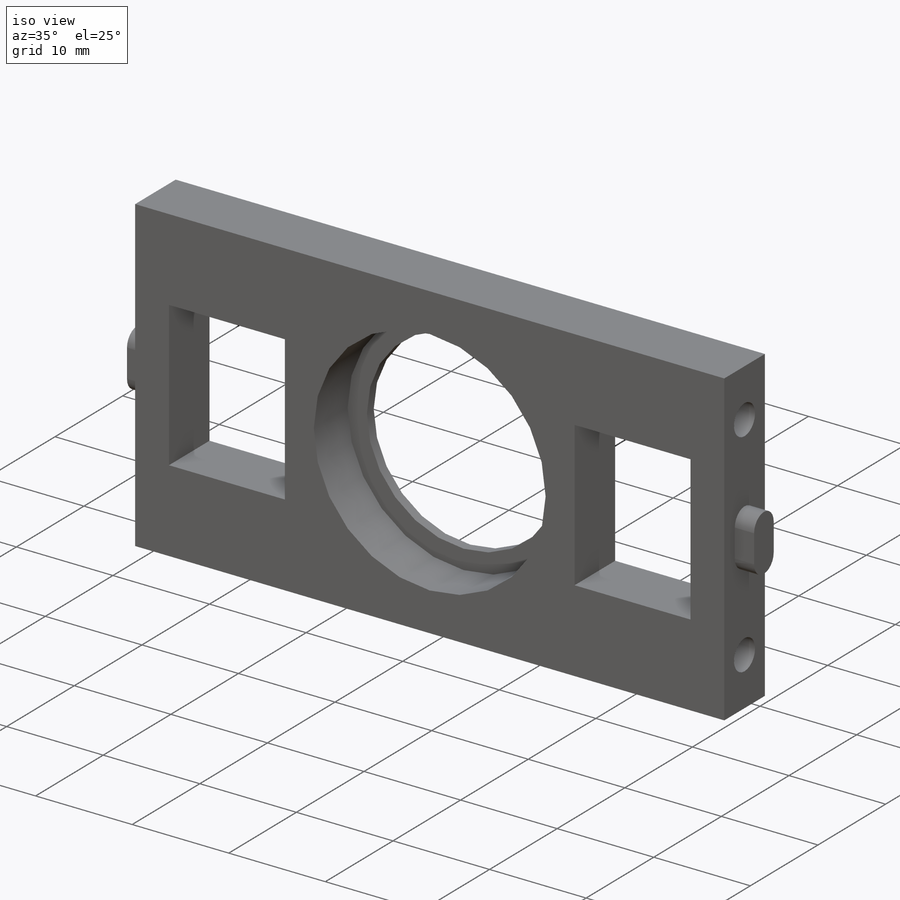
[diagram: iso view]
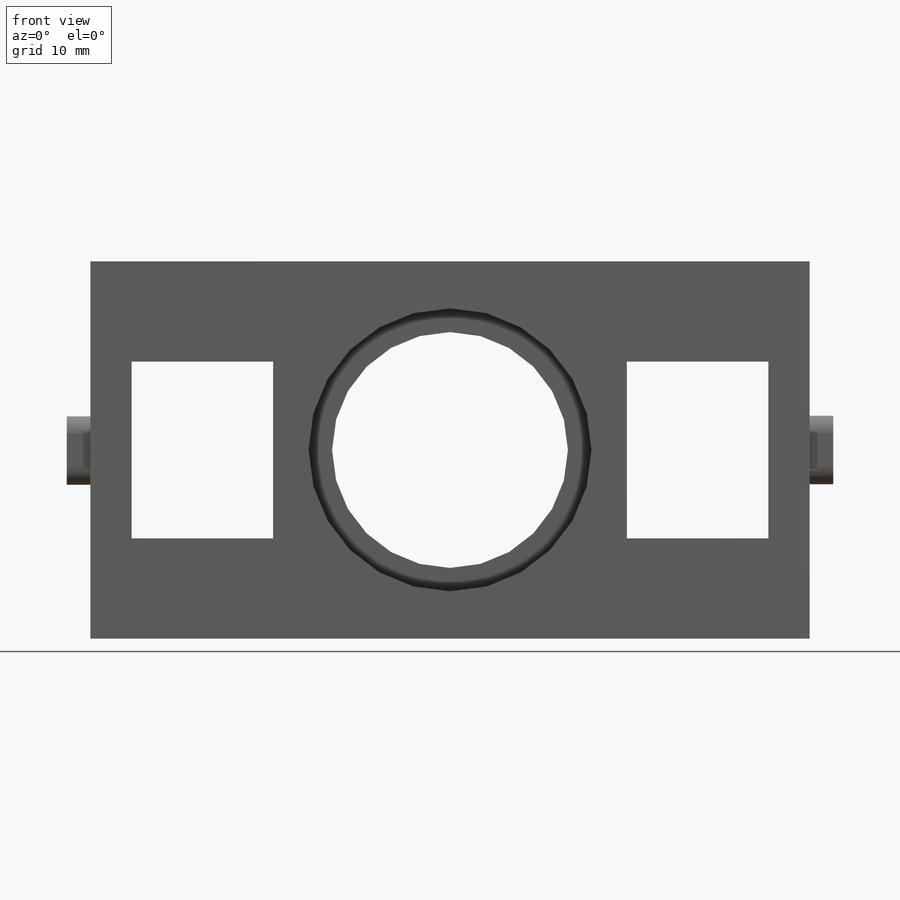
[diagram: front view]
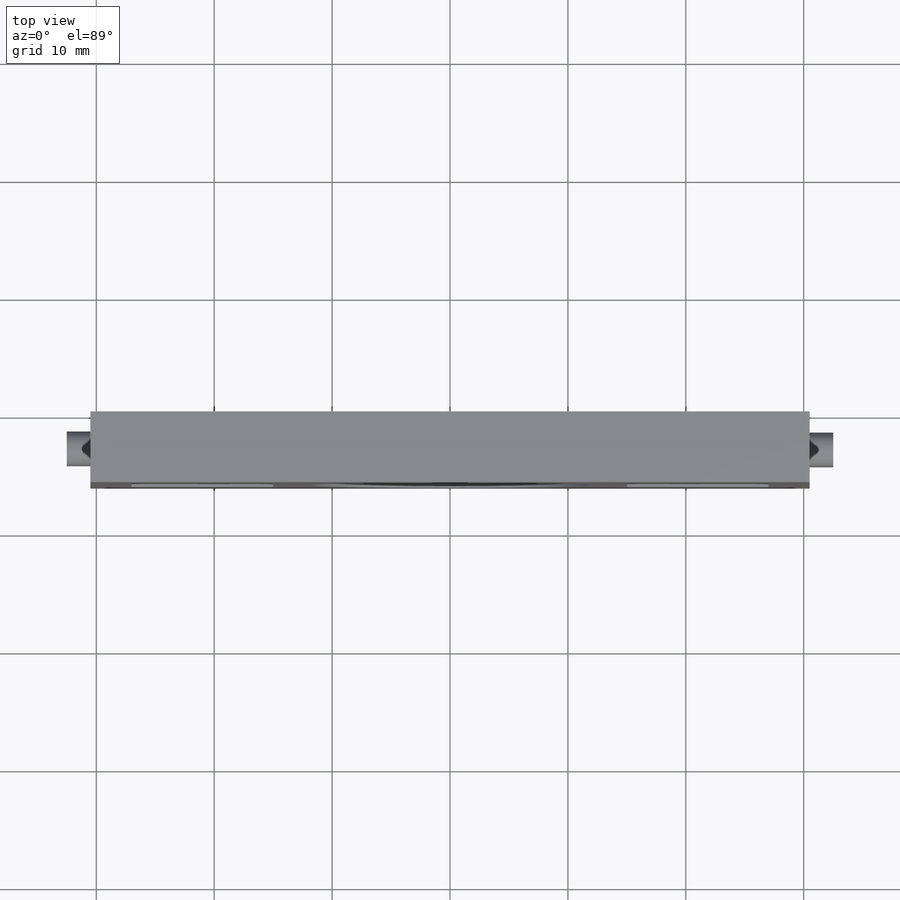
[diagram: top view]
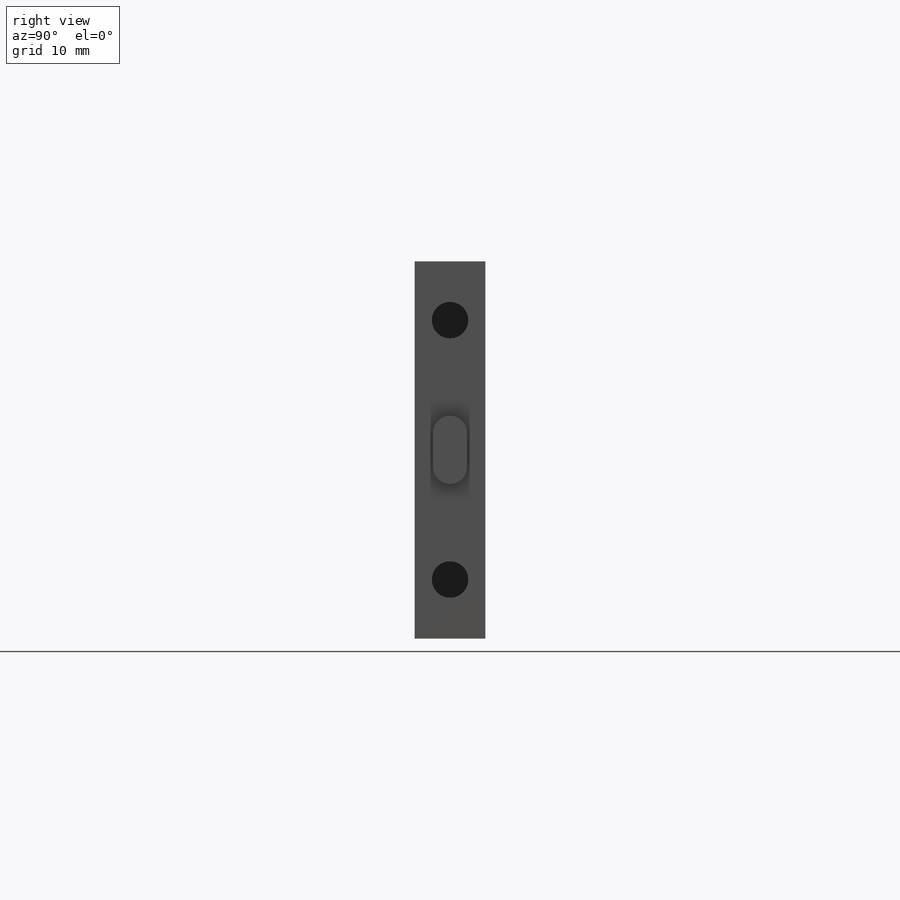
[diagram: right view]
SOLIDWORKS PART (.sldprt)
format: sldprt  version: not decoded by parser v0  size: 327,680 bytes
history: native  units: mm
features: sketch x8, cut_extrude x5, plane x3, extrude x3, material x1 (+10 scaffold rows collapsed)
feature tree (30):
  scaffold x10  (default folders/planes/origin — collapsed)
  material  "Материал <не указан>"
  plane  "Спереди"
  plane  "Сверху"
  plane  "Справа"
  sketch  "Эскиз1"  dims[D3=20.0mm D4=24.0mm D1=32.0mm D2=61.0mm]
  extrude  "Бобышка-Вытянуть1"  Depth=6mm
  sketch  "Эскиз2"  dims[D1=20.0mm]
  cut_extrude  "Вырез-Вытянуть13"  Depth=6mm
  sketch  "Эскиз4"  dims[D1=11.0561mm]
  cut_extrude  "Вырез-Вытянуть14"  Depth=5mm
  sketch  "Эскиз5"  dims[c1.D1=12.0mm c1.D2=15.0mm c1.D3=12.0mm c1.D4=12.0mm c2.D3=12.0mm c2.D4=15.0mm c2.D5=10.0mm c2.D6=10.0mm c2.D7=10.0mm c2.D8=10.0mm]
  cut_extrude  "Вырез-Вытянуть16"  Depth=6mm
  sketch  "Эскиз8"  dims[D1=0.0mm]
  extrude  "Бобышка-Вытянуть12"  Depth=2mm
  sketch  "Эскиз9"  dims[D1=0.0mm]
  extrude  "Бобышка-Вытянуть13"  Depth=2mm
  sketch  "Эскиз10"  dims[D1=3.1mm D2=3.1mm]
  cut_extrude  "Вырез-Вытянуть18"  Depth=15mm
  sketch  "Эскиз11"  dims[D1=3.1mm D2=~1.59276mm]
  cut_extrude  "Вырез-Вытянуть19"  Depth=15mm
decode coverage: 16 of 16 modeling features carry decoded parameters
note: ~ marks probable driven/reference dimensions
note: suppression state not decoded; provenance and decode notes live in map.json
